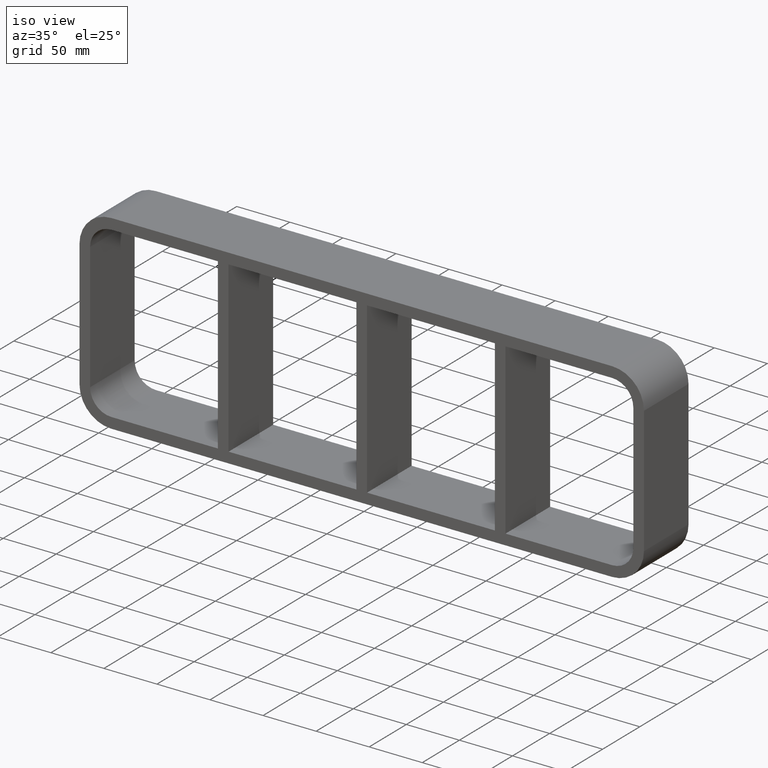
[diagram: clean part render]
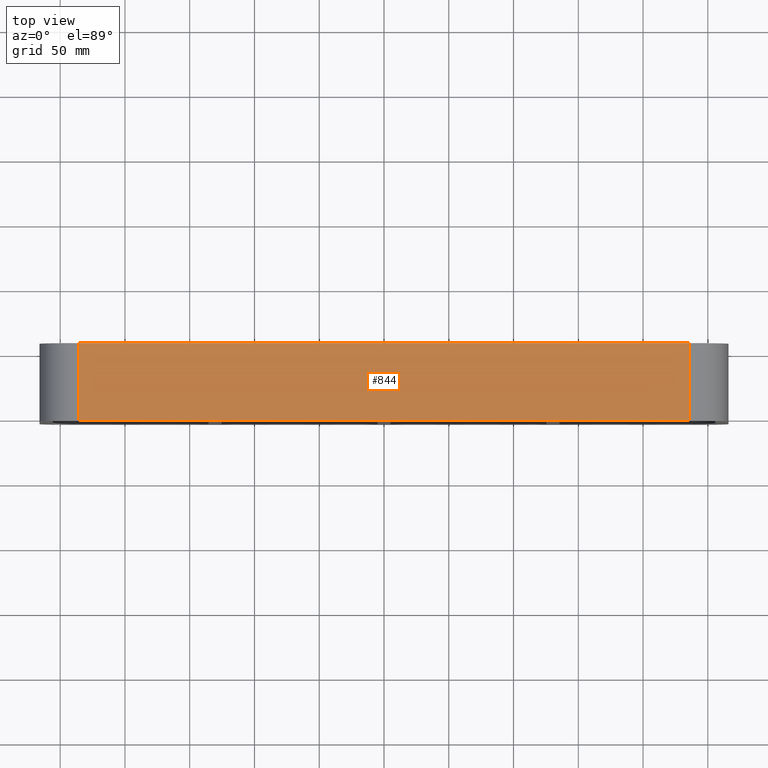
[diagram: tour spotlight — one face highlighted and labeled with its STEP entity id]
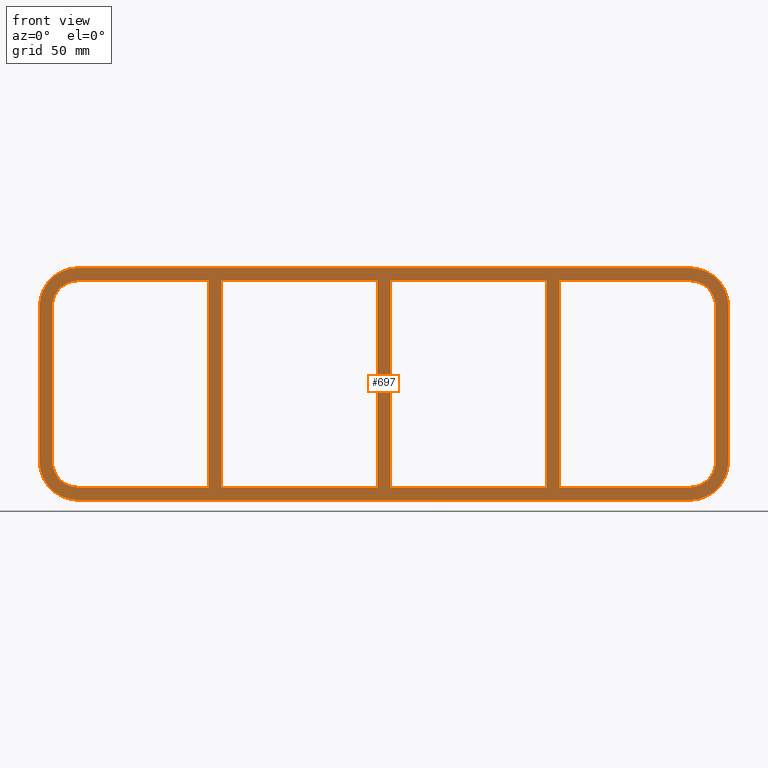
[diagram: tour spotlight — one face highlighted and labeled with its STEP entity id]
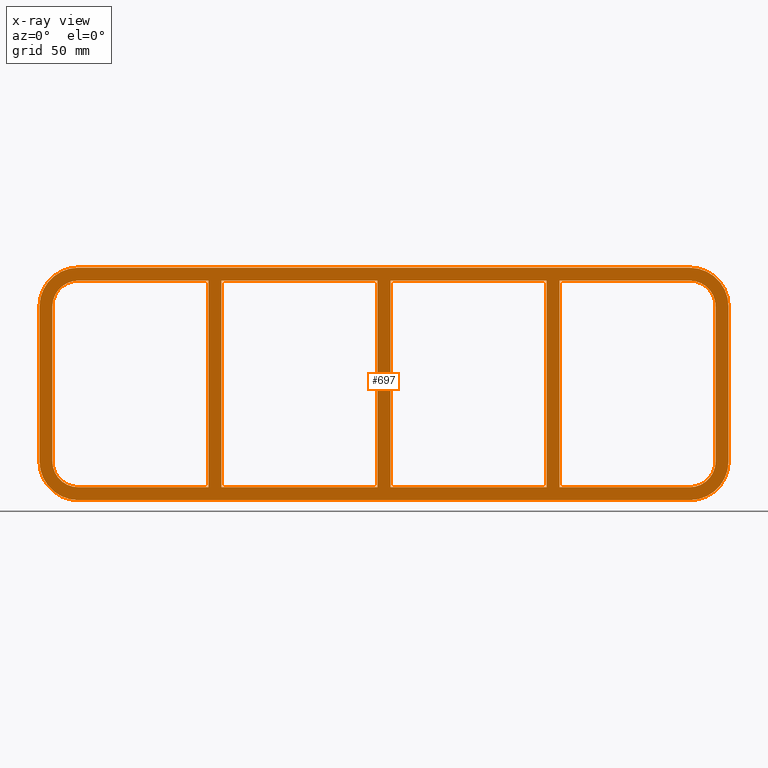
[diagram: x-ray of the same camera — body ghosted, this tour face saturated]
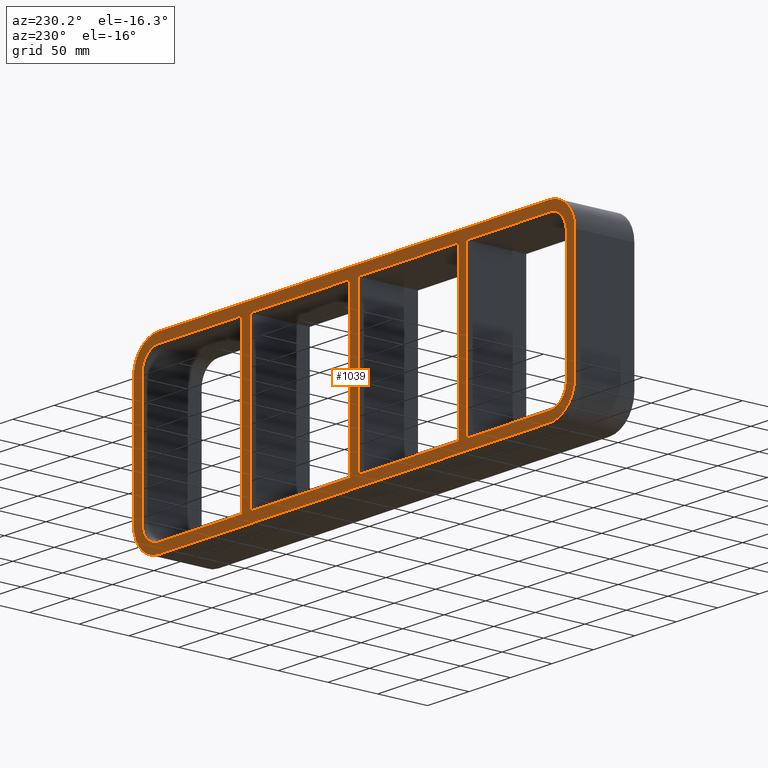
[diagram: tour spotlight — one face highlighted and labeled with its STEP entity id]
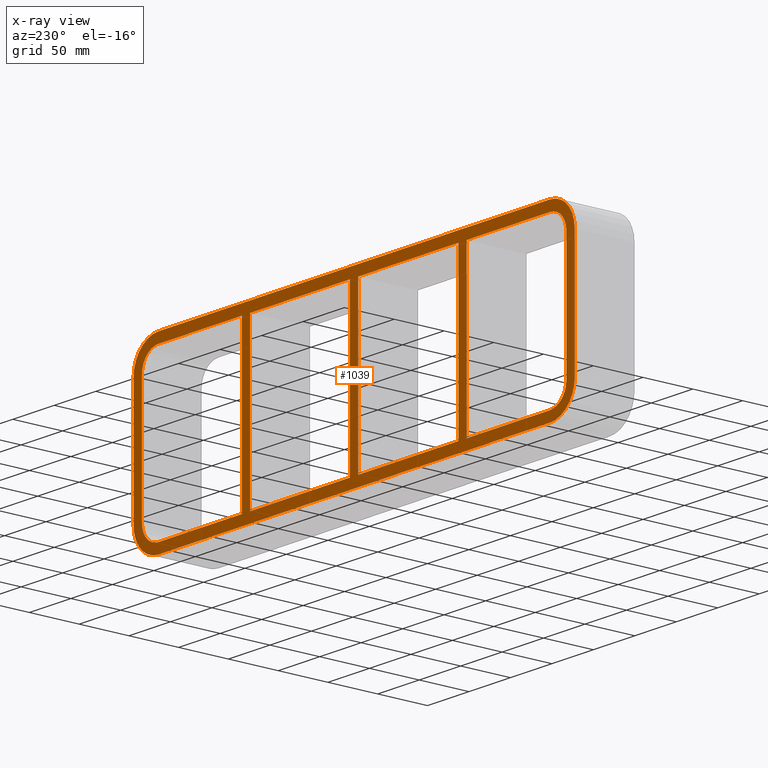
[diagram: x-ray of the same camera — body ghosted, this tour face saturated]
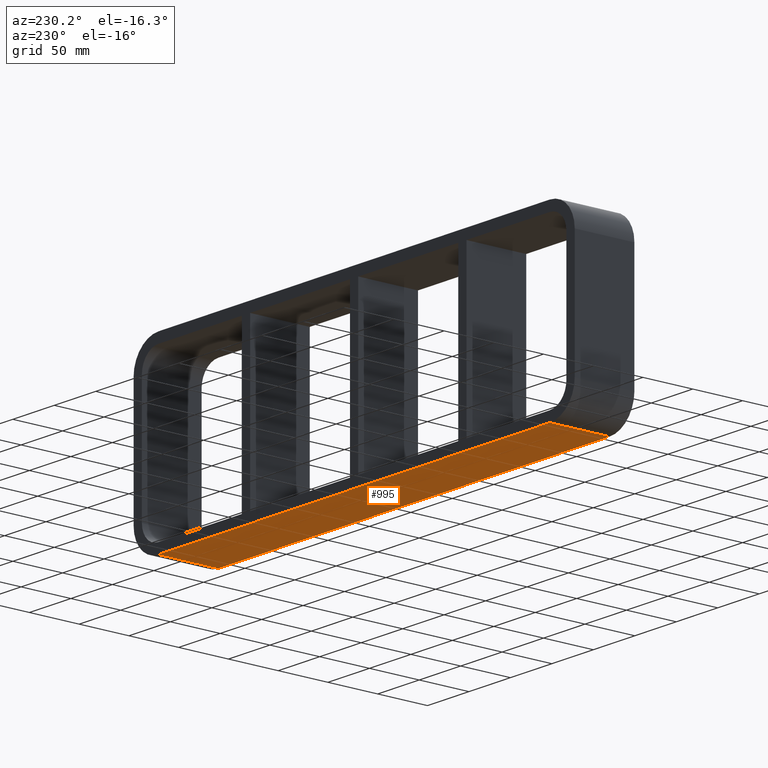
[diagram: tour spotlight — one face highlighted and labeled with its STEP entity id]
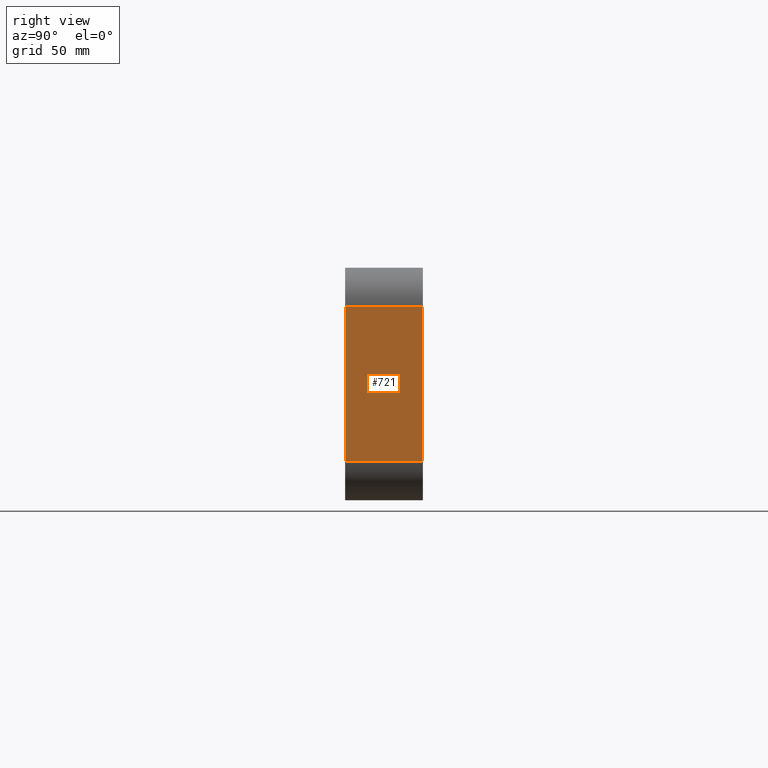
[diagram: tour spotlight — one face highlighted and labeled with its STEP entity id]
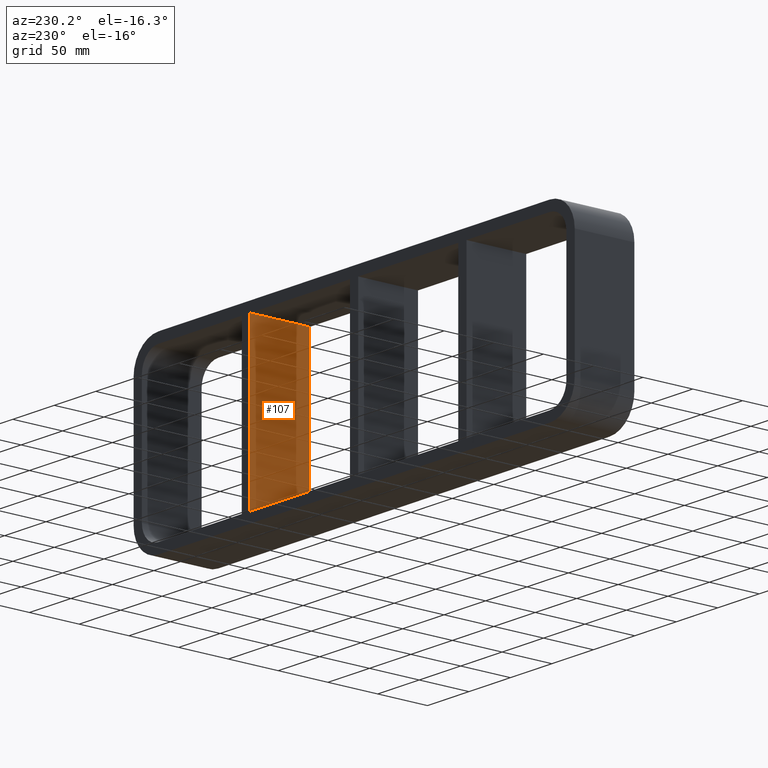
[diagram: tour spotlight — one face highlighted and labeled with its STEP entity id]
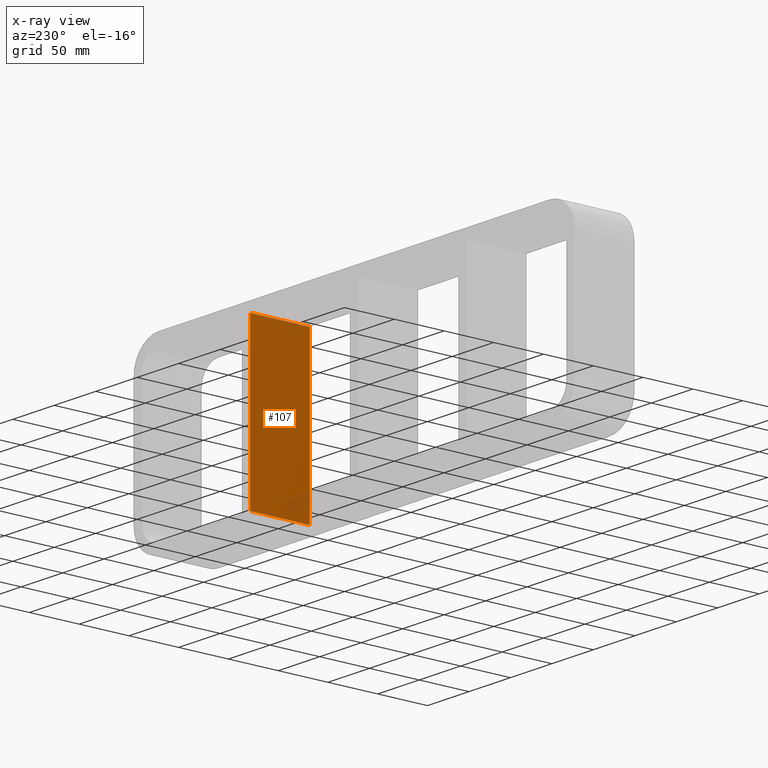
[diagram: x-ray of the same camera — body ghosted, this tour face saturated]
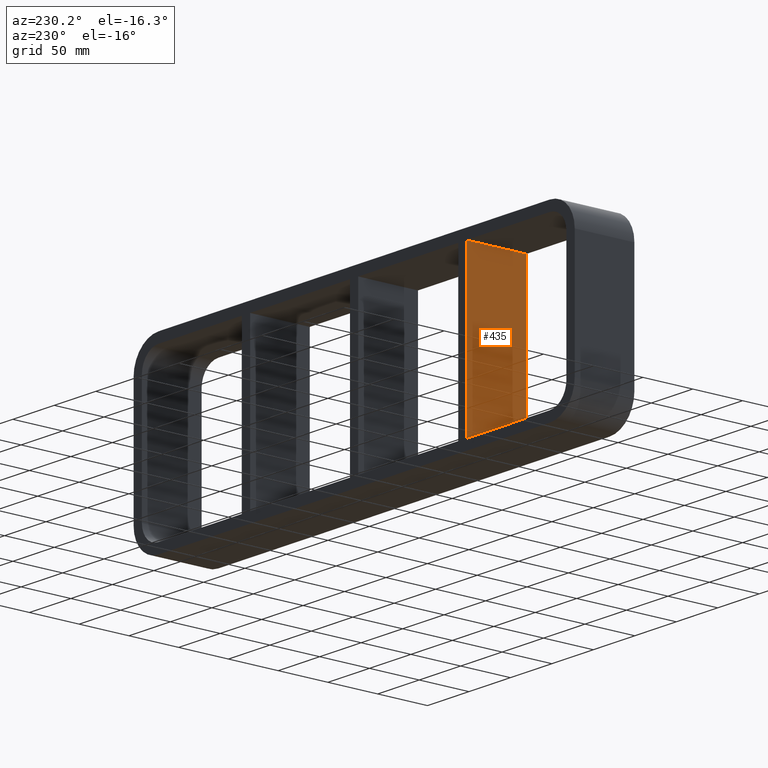
[diagram: tour spotlight — one face highlighted and labeled with its STEP entity id]
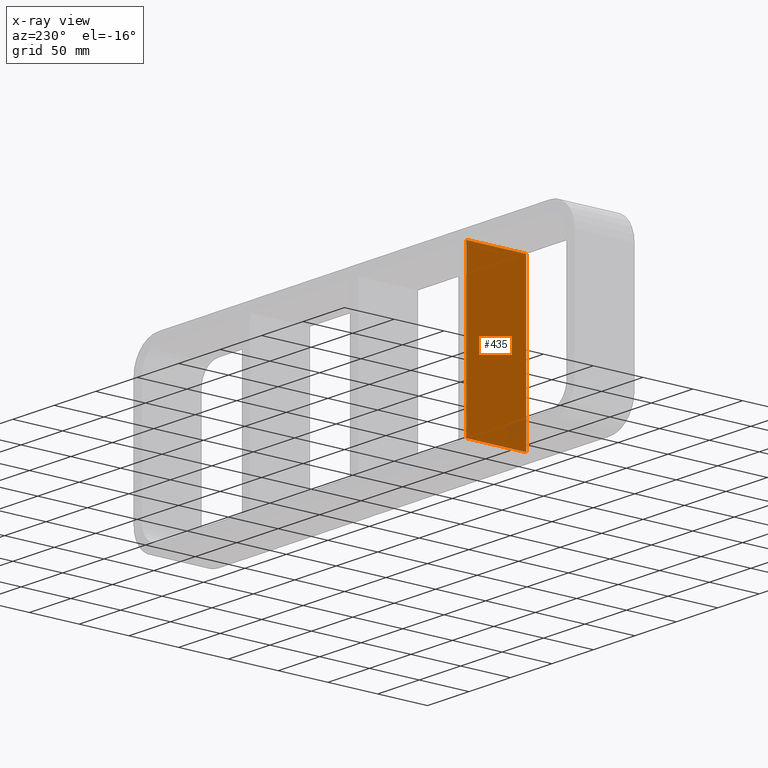
[diagram: x-ray of the same camera — body ghosted, this tour face saturated]
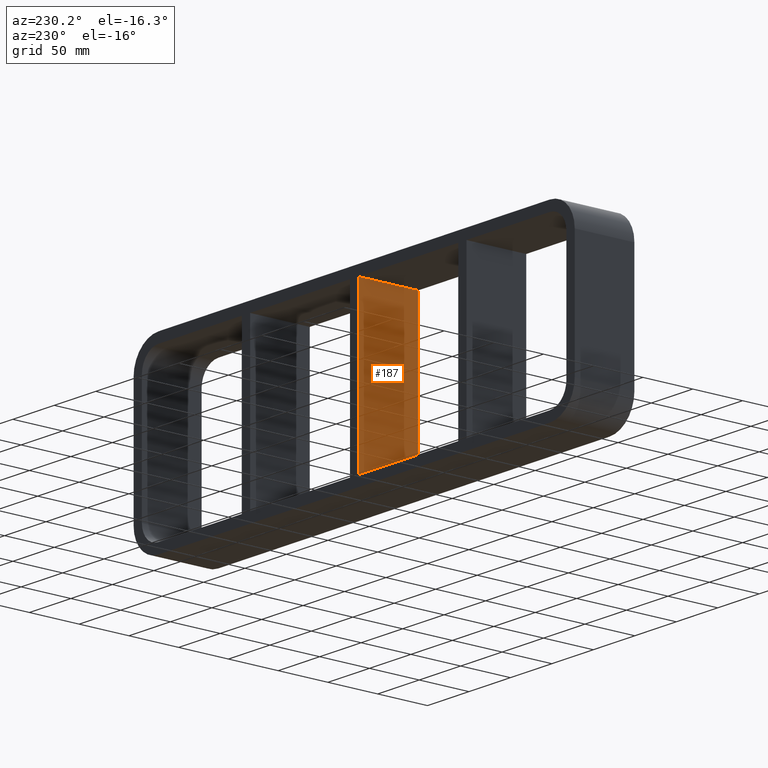
[diagram: tour spotlight — one face highlighted and labeled with its STEP entity id]
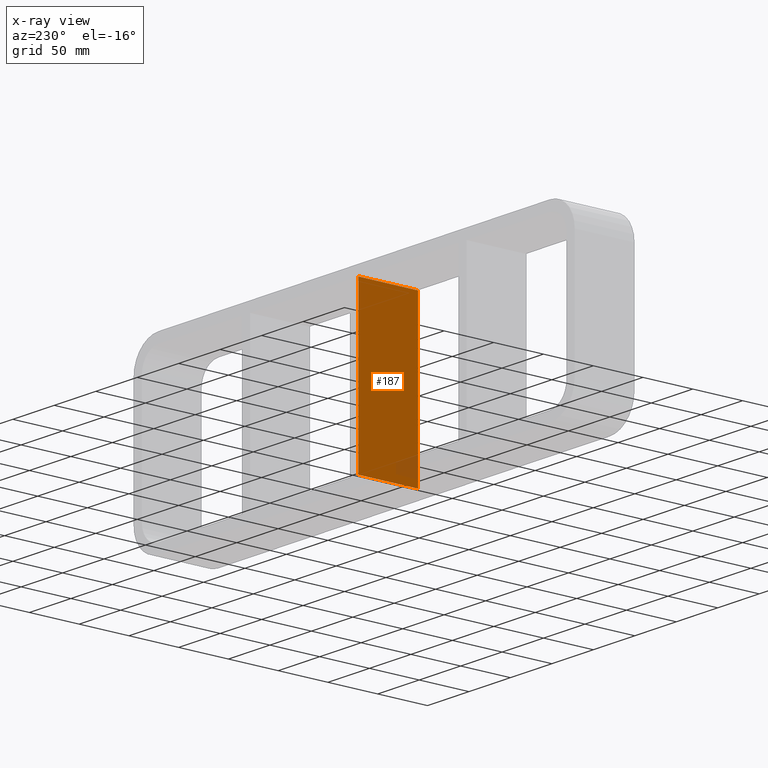
[diagram: x-ray of the same camera — body ghosted, this tour face saturated]
A machine part: a face-by-face anatomy tour. The part has 30 B-rep faces; the first image is the clean iso view, then the 8 largest visible faces are spotlighted one at a time (largest first), each with its STEP entity span.

Face 1 — top view, entity #844. In plain terms, the highlighted planar face has unit normal (0, 0, 1).
Definition (entity closure, byte-faithful):
#576=CARTESIAN_POINT('',(236.0,-3.0,89.750000000000014));
#577=VERTEX_POINT('',#576);
#585=CARTESIAN_POINT('',(-236.0,-3.0,89.750000000000014));
#586=VERTEX_POINT('',#585);
#587=CARTESIAN_POINT('',(236.0,-3.0,89.750000000000014));
#588=DIRECTION('',(-1.0,0.0,0.0));
#589=VECTOR('',#588,472.0);
#590=LINE('',#587,#589);
#591=EDGE_CURVE('',#577,#586,#590,.T.);
#729=CARTESIAN_POINT('',(236.0,57.0,89.750000000000014));
#730=VERTEX_POINT('',#729);
#738=CARTESIAN_POINT('',(236.0,57.0,89.750000000000014));
#739=DIRECTION('',(0.0,-1.0,0.0));
#740=VECTOR('',#739,60.0);
#741=LINE('',#738,#740);
#742=EDGE_CURVE('',#730,#577,#741,.T.);
#808=CARTESIAN_POINT('',(-236.0,57.0,89.750000000000014));
#809=VERTEX_POINT('',#808);
#819=CARTESIAN_POINT('',(-236.0,-3.0,89.750000000000014));
#820=DIRECTION('',(0.0,1.0,0.0));
#821=VECTOR('',#820,60.0);
#822=LINE('',#819,#821);
#823=EDGE_CURVE('',#586,#809,#822,.T.);
#828=CARTESIAN_POINT('',(-266.0,0.0,89.750000000000014));
#829=DIRECTION('',(0.0,0.0,1.0));
#830=DIRECTION('',(1.0,0.0,0.0));
#831=AXIS2_PLACEMENT_3D('',#828,#829,#830);
#832=PLANE('',#831);
#833=ORIENTED_EDGE('',*,*,#742,.F.);
#834=CARTESIAN_POINT('',(-236.0,57.0,89.750000000000014));
#835=DIRECTION('',(1.0,0.0,0.0));
#836=VECTOR('',#835,472.0);
#837=LINE('',#834,#836);
#838=EDGE_CURVE('',#809,#730,#837,.T.);
#839=ORIENTED_EDGE('',*,*,#838,.F.);
#840=ORIENTED_EDGE('',*,*,#823,.F.);
#841=ORIENTED_EDGE('',*,*,#591,.F.);
#842=EDGE_LOOP('',(#833,#839,#840,#841));
#843=FACE_OUTER_BOUND('',#842,.T.);
#844=ADVANCED_FACE('',(#843),#832,.T.);

Face 2 — front view, entity #697. An x-ray twin of the same camera follows (body ghosted, this face saturated) — the face is partly hidden behind the body. In plain terms, the highlighted planar face has unit normal (0, 1, 0).
Definition (entity closure, byte-faithful):
#73=CARTESIAN_POINT('',(125.49999999999866,-3.0,-79.750000000000014));
#74=VERTEX_POINT('',#73);
#75=CARTESIAN_POINT('',(125.49999999999869,-3.0,79.750000000000014));
#76=VERTEX_POINT('',#75);
#77=CARTESIAN_POINT('',(125.49999999999866,-3.0,-79.750000000000014));
#78=DIRECTION('',(0.0,0.0,1.0));
#79=VECTOR('',#78,159.50000000000003);
#80=LINE('',#77,#79);
#81=EDGE_CURVE('',#74,#76,#80,.T.);
#113=CARTESIAN_POINT('',(135.50000000000728,-3.0,79.750000000000014));
#114=VERTEX_POINT('',#113);
#115=CARTESIAN_POINT('',(135.50000000000728,-3.0,-79.74999999998424));
#116=VERTEX_POINT('',#115);
#117=CARTESIAN_POINT('',(135.50000000000728,-3.0,79.750000000000014));
#118=DIRECTION('',(0.0,0.0,-1.0));
#119=VECTOR('',#118,159.49999999998425);
#120=LINE('',#117,#119);
#121=EDGE_CURVE('',#114,#116,#120,.T.);
#153=CARTESIAN_POINT('',(-5.00000000000135,-3.0,-79.750000000000014));
#154=VERTEX_POINT('',#153);
#155=CARTESIAN_POINT('',(-5.000000000001315,-3.0,79.750000000000014));
#156=VERTEX_POINT('',#155);
#157=CARTESIAN_POINT('',(-5.00000000000135,-3.0,-79.750000000000014));
#158=DIRECTION('',(0.0,0.0,1.0));
#159=VECTOR('',#158,159.50000000000003);
#160=LINE('',#157,#159);
#161=EDGE_CURVE('',#154,#156,#160,.T.);
#193=CARTESIAN_POINT('',(5.000000000007283,-3.0,79.750000000000014));
#194=VERTEX_POINT('',#193);
#195=CARTESIAN_POINT('',(5.000000000007283,-3.0,-79.74999999998424));
#196=VERTEX_POINT('',#195);
#197=CARTESIAN_POINT('',(5.000000000007283,-3.0,79.750000000000014));
#198=DIRECTION('',(0.0,0.0,-1.0));
#199=VECTOR('',#198,159.49999999998425);
#200=LINE('',#197,#199);
#201=EDGE_CURVE('',#194,#196,#200,.T.);
#242=CARTESIAN_POINT('',(-125.49999999999272,-3.0,-79.74999999998424));
#243=VERTEX_POINT('',#242);
#250=CARTESIAN_POINT('',(-5.000000000001336,-3.0,-79.750000000000014));
#251=DIRECTION('',(-1.0,0.0,0.0));
#252=VECTOR('',#251,120.49999999999142);
#253=LINE('',#250,#252);
#254=EDGE_CURVE('',#154,#243,#253,.T.);
#272=CARTESIAN_POINT('',(125.49999999999866,-3.0,-79.750000000000014));
#273=DIRECTION('',(-1.0,0.0,0.0));
#274=VECTOR('',#273,120.49999999999137);
#275=LINE('',#272,#274);
#276=EDGE_CURVE('',#74,#196,#275,.T.);
#287=CARTESIAN_POINT('',(236.00000000000006,-3.0,-79.750000000000014));
#288=VERTEX_POINT('',#287);
#289=CARTESIAN_POINT('',(236.00000000000006,-3.0,-79.750000000000014));
#290=DIRECTION('',(-1.0,0.0,0.0));
#291=VECTOR('',#290,100.49999999999275);
#292=LINE('',#289,#291);
#293=EDGE_CURVE('',#288,#116,#292,.T.);
#318=CARTESIAN_POINT('',(-125.49999999999272,-3.0,79.750000000000014));
#319=VERTEX_POINT('',#318);
#320=CARTESIAN_POINT('',(-125.49999999999272,-3.0,79.750000000000014));
#321=DIRECTION('',(1.0,0.0,0.0));
#322=VECTOR('',#321,120.49999999999142);
#323=LINE('',#320,#322);
#324=EDGE_CURVE('',#319,#156,#323,.T.);
#357=CARTESIAN_POINT('',(236.00000000000006,-3.0,79.750000000000014));
#358=VERTEX_POINT('',#357);
#365=CARTESIAN_POINT('',(135.50000000000728,-3.0,79.750000000000014));
#366=DIRECTION('',(1.0,0.0,0.0));
#367=VECTOR('',#366,100.49999999999278);
#368=LINE('',#365,#367);
#369=EDGE_CURVE('',#114,#358,#368,.T.);
#380=CARTESIAN_POINT('',(5.000000000007276,-3.0,79.750000000000014));
#381=DIRECTION('',(1.0,0.0,0.0));
#382=VECTOR('',#381,120.49999999999142);
#383=LINE('',#380,#382);
#384=EDGE_CURVE('',#194,#76,#383,.T.);
#401=CARTESIAN_POINT('',(-135.50000000000136,-3.0,-79.750000000000014));
#402=VERTEX_POINT('',#401);
#403=CARTESIAN_POINT('',(-135.50000000000131,-3.0,79.750000000000014));
#404=VERTEX_POINT('',#403);
#405=CARTESIAN_POINT('',(-135.50000000000136,-3.0,-79.750000000000014));
#406=DIRECTION('',(0.0,0.0,1.0));
#407=VECTOR('',#406,159.50000000000003);
#408=LINE('',#405,#407);
#409=EDGE_CURVE('',#402,#404,#408,.T.);
#441=CARTESIAN_POINT('',(-125.49999999999272,-3.0,79.750000000000014));
#442=DIRECTION('',(0.0,0.0,-1.0));
#443=VECTOR('',#442,159.49999999998425);
#444=LINE('',#441,#443);
#445=EDGE_CURVE('',#319,#243,#444,.T.);
#472=CARTESIAN_POINT('',(-236.0,-3.0,-79.750000000000014));
#473=VERTEX_POINT('',#472);
#480=CARTESIAN_POINT('',(-135.50000000000134,-3.0,-79.750000000000014));
#481=DIRECTION('',(-1.0,0.0,0.0));
#482=VECTOR('',#481,100.49999999999869);
#483=LINE('',#480,#482);
#484=EDGE_CURVE('',#402,#473,#483,.T.);
#495=CARTESIAN_POINT('',(-236.0,-3.0,79.750000000000014));
#496=VERTEX_POINT('',#495);
#497=CARTESIAN_POINT('',(-236.0,-3.0,79.750000000000014));
#498=DIRECTION('',(1.0,0.0,0.0));
#499=VECTOR('',#498,100.49999999999869);
#500=LINE('',#497,#499);
#501=EDGE_CURVE('',#496,#404,#500,.T.);
#536=CARTESIAN_POINT('',(266.0,-3.0,-59.750000000000014));
#537=VERTEX_POINT('',#536);
#544=CARTESIAN_POINT('',(236.0,-3.0,-89.750000000000014));
#545=VERTEX_POINT('',#544);
#546=CARTESIAN_POINT('',(236.0,-3.0,-59.750000000000014));
#547=DIRECTION('',(0.0,1.0,0.0));
#548=DIRECTION('',(0.707106781186547,0.0,-0.707106781186547));
#549=AXIS2_PLACEMENT_3D('',#546,#547,#548);
#550=CIRCLE('',#549,30.0);
#551=EDGE_CURVE('',#537,#545,#550,.T.);
#562=CARTESIAN_POINT('',(0.0,-3.0,0.0));
#563=DIRECTION('',(0.0,1.0,0.0));
#564=DIRECTION('',(0.0,0.0,1.0));
#565=AXIS2_PLACEMENT_3D('',#562,#563,#564);
#566=PLANE('',#565);
#567=ORIENTED_EDGE('',*,*,#551,.F.);
#568=CARTESIAN_POINT('',(266.0,-3.0,59.750000000000014));
#569=VERTEX_POINT('',#568);
#570=CARTESIAN_POINT('',(266.0,-3.0,-59.750000000000014));
#571=DIRECTION('',(0.0,0.0,1.0));
#572=VECTOR('',#571,119.50000000000003);
#573=LINE('',#570,#572);
#574=EDGE_CURVE('',#537,#569,#573,.T.);
#575=ORIENTED_EDGE('',*,*,#574,.T.);
#576=CARTESIAN_POINT('',(236.0,-3.0,89.750000000000014));
#577=VERTEX_POINT('',#576);
#578=CARTESIAN_POINT('',(236.0,-3.0,59.750000000000014));
#579=DIRECTION('',(0.0,1.0,0.0));
#580=DIRECTION('',(0.707106781186547,0.0,0.707106781186547));
#581=AXIS2_PLACEMENT_3D('',#578,#579,#580);
#582=CIRCLE('',#581,30.0);
#583=EDGE_CURVE('',#577,#569,#582,.T.);
#584=ORIENTED_EDGE('',*,*,#583,.F.);
#585=CARTESIAN_POINT('',(-236.0,-3.0,89.750000000000014));
#586=VERTEX_POINT('',#585);
#587=CARTESIAN_POINT('',(236.0,-3.0,89.750000000000014));
#588=DIRECTION('',(-1.0,0.0,0.0));
#589=VECTOR('',#588,472.0);
#590=LINE('',#587,#589);
#591=EDGE_CURVE('',#577,#586,#590,.T.);
#592=ORIENTED_EDGE('',*,*,#591,.T.);
#593=CARTESIAN_POINT('',(-266.0,-3.0,59.750000000000014));
#594=VERTEX_POINT('',#593);
#595=CARTESIAN_POINT('',(-236.0,-3.0,59.750000000000014));
#596=DIRECTION('',(0.0,1.0,0.0));
#597=DIRECTION('',(-0.707106781186547,0.0,0.707106781186547));
#598=AXIS2_PLACEMENT_3D('',#595,#596,#597);
#599=CIRCLE('',#598,30.0);
#600=EDGE_CURVE('',#594,#586,#599,.T.);
#601=ORIENTED_EDGE('',*,*,#600,.F.);
#602=CARTESIAN_POINT('',(-266.0,-3.0,-59.750000000000014));
#603=VERTEX_POINT('',#602);
#604=CARTESIAN_POINT('',(-266.0,-3.0,59.750000000000014));
#605=DIRECTION('',(0.0,0.0,-1.0));
#606=VECTOR('',#605,119.50000000000003);
#607=LINE('',#604,#606);
#608=EDGE_CURVE('',#594,#603,#607,.T.);
#609=ORIENTED_EDGE('',*,*,#608,.T.);
#610=CARTESIAN_POINT('',(-236.0,-3.0,-89.750000000000014));
#611=VERTEX_POINT('',#610);
#612=CARTESIAN_POINT('',(-236.0,-3.0,-59.750000000000014));
#613=DIRECTION('',(0.0,1.0,0.0));
#614=DIRECTION('',(-0.707106781186547,0.0,-0.707106781186547));
#615=AXIS2_PLACEMENT_3D('',#612,#613,#614);
#616=CIRCLE('',#615,30.0);
#617=EDGE_CURVE('',#611,#603,#616,.T.);
#618=ORIENTED_EDGE('',*,*,#617,.F.);
#619=CARTESIAN_POINT('',(-236.0,-3.0,-89.750000000000014));
#620=DIRECTION('',(1.0,0.0,0.0));
#621=VECTOR('',#620,472.0);
#622=LINE('',#619,#621);
#623=EDGE_CURVE('',#611,#545,#622,.T.);
#624=ORIENTED_EDGE('',*,*,#623,.T.);
#625=EDGE_LOOP('',(#567,#575,#584,#592,#601,#609,#618,#624));
#626=FACE_OUTER_BOUND('',#625,.T.);
#627=ORIENTED_EDGE('',*,*,#276,.T.);
#628=ORIENTED_EDGE('',*,*,#201,.F.);
#629=ORIENTED_EDGE('',*,*,#384,.T.);
#630=ORIENTED_EDGE('',*,*,#81,.F.);
#631=EDGE_LOOP('',(#627,#628,#629,#630));
#632=FACE_BOUND('',#631,.T.);
#633=ORIENTED_EDGE('',*,*,#254,.T.);
#634=ORIENTED_EDGE('',*,*,#445,.F.);
#635=ORIENTED_EDGE('',*,*,#324,.T.);
#636=ORIENTED_EDGE('',*,*,#161,.F.);
#637=EDGE_LOOP('',(#633,#634,#635,#636));
#638=FACE_BOUND('',#637,.T.);
#639=ORIENTED_EDGE('',*,*,#484,.T.);
#640=CARTESIAN_POINT('',(-256.0,-3.0,-59.750000000000014));
#641=VERTEX_POINT('',#640);
#642=CARTESIAN_POINT('',(-236.0,-3.0,-59.750000000000014));
#643=DIRECTION('',(0.0,-1.0,0.0));
#644=DIRECTION('',(-0.707106781186547,0.0,-0.707106781186547));
#645=AXIS2_PLACEMENT_3D('',#642,#643,#644);
#646=CIRCLE('',#645,19.999999999999996);
#647=EDGE_CURVE('',#641,#473,#646,.T.);
#648=ORIENTED_EDGE('',*,*,#647,.F.);
#649=CARTESIAN_POINT('',(-256.0,-3.0,59.750000000000014));
#650=VERTEX_POINT('',#649);
#651=CARTESIAN_POINT('',(-256.0,-3.0,-59.750000000000014));
#652=DIRECTION('',(0.0,0.0,1.0));
#653=VECTOR('',#652,119.50000000000003);
#654=LINE('',#651,#653);
#655=EDGE_CURVE('',#641,#650,#654,.T.);
#656=ORIENTED_EDGE('',*,*,#655,.T.);
#657=CARTESIAN_POINT('',(-236.0,-3.0,59.750000000000014));
#658=DIRECTION('',(0.0,-1.0,0.0));
#659=DIRECTION('',(-0.707106781186547,0.0,0.707106781186547));
#660=AXIS2_PLACEMENT_3D('',#657,#658,#659);
#661=CIRCLE('',#660,19.999999999999996);
#662=EDGE_CURVE('',#496,#650,#661,.T.);
#663=ORIENTED_EDGE('',*,*,#662,.F.);
#664=ORIENTED_EDGE('',*,*,#501,.T.);
#665=ORIENTED_EDGE('',*,*,#409,.F.);
#666=EDGE_LOOP('',(#639,#648,#656,#663,#664,#665));
#667=FACE_BOUND('',#666,.T.);
#668=ORIENTED_EDGE('',*,*,#121,.F.);
#669=ORIENTED_EDGE('',*,*,#369,.T.);
#670=CARTESIAN_POINT('',(256.00000000000006,-3.0,59.750000000000014));
#671=VERTEX_POINT('',#670);
#672=CARTESIAN_POINT('',(236.0,-3.0,59.750000000000014));
#673=DIRECTION('',(0.0,-1.0,0.0));
#674=DIRECTION('',(0.707106781186547,0.0,0.707106781186547));
#675=AXIS2_PLACEMENT_3D('',#672,#673,#674);
#676=CIRCLE('',#675,19.999999999999996);
#677=EDGE_CURVE('',#671,#358,#676,.T.);
#678=ORIENTED_EDGE('',*,*,#677,.F.);
#679=CARTESIAN_POINT('',(256.00000000000006,-3.0,-59.750000000000014));
#680=VERTEX_POINT('',#679);
#681=CARTESIAN_POINT('',(256.00000000000006,-3.0,59.750000000000014));
#682=DIRECTION('',(0.0,0.0,-1.0));
#683=VECTOR('',#682,119.50000000000003);
#684=LINE('',#681,#683);
#685=EDGE_CURVE('',#671,#680,#684,.T.);
#686=ORIENTED_EDGE('',*,*,#685,.T.);
#687=CARTESIAN_POINT('',(236.00000000000006,-3.0,-59.750000000000014));
#688=DIRECTION('',(0.0,-1.0,0.0));
#689=DIRECTION('',(0.707106781186547,0.0,-0.707106781186547));
#690=AXIS2_PLACEMENT_3D('',#687,#688,#689);
#691=CIRCLE('',#690,19.999999999999996);
#692=EDGE_CURVE('',#288,#680,#691,.T.);
#693=ORIENTED_EDGE('',*,*,#692,.F.);
#694=ORIENTED_EDGE('',*,*,#293,.T.);
#695=EDGE_LOOP('',(#668,#669,#678,#686,#693,#694));
#696=FACE_BOUND('',#695,.T.);
#697=ADVANCED_FACE('',(#626,#632,#638,#667,#696),#566,.F.);

Face 3 — auxiliary view, entity #1039. An x-ray twin of the same camera follows (body ghosted, this face saturated) — the face is partly hidden behind the body. In plain terms, the highlighted planar face has unit normal (0, 1, 0).
Definition (entity closure, byte-faithful):
#83=CARTESIAN_POINT('',(125.49999999999869,57.0,79.750000000000014));
#84=VERTEX_POINT('',#83);
#91=CARTESIAN_POINT('',(125.49999999999866,57.0,-79.750000000000014));
#92=VERTEX_POINT('',#91);
#93=CARTESIAN_POINT('',(125.49999999999866,57.0,-79.750000000000014));
#94=DIRECTION('',(0.0,0.0,1.0));
#95=VECTOR('',#94,159.50000000000003);
#96=LINE('',#93,#95);
#97=EDGE_CURVE('',#92,#84,#96,.T.);
#123=CARTESIAN_POINT('',(135.50000000000728,57.0,-79.74999999998424));
#124=VERTEX_POINT('',#123);
#131=CARTESIAN_POINT('',(135.50000000000728,57.0,79.750000000000014));
#132=VERTEX_POINT('',#131);
#133=CARTESIAN_POINT('',(135.50000000000728,57.0,79.750000000000014));
#134=DIRECTION('',(0.0,0.0,-1.0));
#135=VECTOR('',#134,159.49999999998425);
#136=LINE('',#133,#135);
#137=EDGE_CURVE('',#132,#124,#136,.T.);
#163=CARTESIAN_POINT('',(-5.000000000001315,57.0,79.750000000000014));
#164=VERTEX_POINT('',#163);
#171=CARTESIAN_POINT('',(-5.00000000000135,57.0,-79.750000000000014));
#172=VERTEX_POINT('',#171);
#173=CARTESIAN_POINT('',(-5.00000000000135,57.0,-79.750000000000014));
#174=DIRECTION('',(0.0,0.0,1.0));
#175=VECTOR('',#174,159.50000000000003);
#176=LINE('',#173,#175);
#177=EDGE_CURVE('',#172,#164,#176,.T.);
#203=CARTESIAN_POINT('',(5.000000000007283,57.0,-79.74999999998424));
#204=VERTEX_POINT('',#203);
#211=CARTESIAN_POINT('',(5.000000000007283,57.0,79.750000000000014));
#212=VERTEX_POINT('',#211);
#213=CARTESIAN_POINT('',(5.000000000007283,57.0,79.750000000000014));
#214=DIRECTION('',(0.0,0.0,-1.0));
#215=VECTOR('',#214,159.49999999998425);
#216=LINE('',#213,#215);
#217=EDGE_CURVE('',#212,#204,#216,.T.);
#234=CARTESIAN_POINT('',(-125.49999999999272,57.0,-79.74999999998424));
#235=VERTEX_POINT('',#234);
#236=CARTESIAN_POINT('',(-125.49999999999275,57.0,-79.750000000000014));
#237=DIRECTION('',(1.0,0.0,0.0));
#238=VECTOR('',#237,120.49999999999142);
#239=LINE('',#236,#238);
#240=EDGE_CURVE('',#235,#172,#239,.T.);
#265=CARTESIAN_POINT('',(5.00000000000729,57.0,-79.750000000000014));
#266=DIRECTION('',(1.0,0.0,0.0));
#267=VECTOR('',#266,120.49999999999137);
#268=LINE('',#265,#267);
#269=EDGE_CURVE('',#204,#92,#268,.T.);
#295=CARTESIAN_POINT('',(236.00000000000006,57.0,-79.750000000000014));
#296=VERTEX_POINT('',#295);
#303=CARTESIAN_POINT('',(135.5000000000073,57.0,-79.750000000000014));
#304=DIRECTION('',(1.0,0.0,0.0));
#305=VECTOR('',#304,100.49999999999275);
#306=LINE('',#303,#305);
#307=EDGE_CURVE('',#124,#296,#306,.T.);
#326=CARTESIAN_POINT('',(-125.49999999999272,57.0,79.750000000000014));
#327=VERTEX_POINT('',#326);
#334=CARTESIAN_POINT('',(-5.000000000001307,57.0,79.750000000000014));
#335=DIRECTION('',(-1.0,0.0,0.0));
#336=VECTOR('',#335,120.49999999999142);
#337=LINE('',#334,#336);
#338=EDGE_CURVE('',#164,#327,#337,.T.);
#349=CARTESIAN_POINT('',(236.00000000000006,57.0,79.750000000000014));
#350=VERTEX_POINT('',#349);
#351=CARTESIAN_POINT('',(236.00000000000006,57.0,79.750000000000014));
#352=DIRECTION('',(-1.0,0.0,0.0));
#353=VECTOR('',#352,100.49999999999278);
#354=LINE('',#351,#353);
#355=EDGE_CURVE('',#350,#132,#354,.T.);
#387=CARTESIAN_POINT('',(125.49999999999869,57.0,79.750000000000014));
#388=DIRECTION('',(-1.0,0.0,0.0));
#389=VECTOR('',#388,120.49999999999142);
#390=LINE('',#387,#389);
#391=EDGE_CURVE('',#84,#212,#390,.T.);
#411=CARTESIAN_POINT('',(-135.50000000000131,57.0,79.750000000000014));
#412=VERTEX_POINT('',#411);
#419=CARTESIAN_POINT('',(-135.50000000000136,57.0,-79.750000000000014));
#420=VERTEX_POINT('',#419);
#421=CARTESIAN_POINT('',(-135.50000000000136,57.0,-79.750000000000014));
#422=DIRECTION('',(0.0,0.0,1.0));
#423=VECTOR('',#422,159.50000000000003);
#424=LINE('',#421,#423);
#425=EDGE_CURVE('',#420,#412,#424,.T.);
#448=CARTESIAN_POINT('',(-125.49999999999272,57.0,79.750000000000014));
#449=DIRECTION('',(0.0,0.0,-1.0));
#450=VECTOR('',#449,159.49999999998425);
#451=LINE('',#448,#450);
#452=EDGE_CURVE('',#327,#235,#451,.T.);
#464=CARTESIAN_POINT('',(-236.0,57.0,-79.750000000000014));
#465=VERTEX_POINT('',#464);
#466=CARTESIAN_POINT('',(-236.00000000000003,57.0,-79.750000000000014));
#467=DIRECTION('',(1.0,0.0,0.0));
#468=VECTOR('',#467,100.49999999999869);
#469=LINE('',#466,#468);
#470=EDGE_CURVE('',#465,#420,#469,.T.);
#503=CARTESIAN_POINT('',(-236.0,57.0,79.750000000000014));
#504=VERTEX_POINT('',#503);
#511=CARTESIAN_POINT('',(-135.50000000000131,57.0,79.750000000000014));
#512=DIRECTION('',(-1.0,0.0,0.0));
#513=VECTOR('',#512,100.49999999999869);
#514=LINE('',#511,#513);
#515=EDGE_CURVE('',#412,#504,#514,.T.);
#525=CARTESIAN_POINT('',(236.0,57.0,-89.750000000000014));
#526=VERTEX_POINT('',#525);
#527=CARTESIAN_POINT('',(266.0,57.0,-59.750000000000014));
#528=VERTEX_POINT('',#527);
#529=CARTESIAN_POINT('',(236.0,57.0,-59.750000000000014));
#530=DIRECTION('',(0.0,-1.0,0.0));
#531=DIRECTION('',(0.707106781186547,0.0,-0.707106781186547));
#532=AXIS2_PLACEMENT_3D('',#529,#530,#531);
#533=CIRCLE('',#532,30.0);
#534=EDGE_CURVE('',#526,#528,#533,.T.);
#704=CARTESIAN_POINT('',(266.0,57.0,59.750000000000014));
#705=VERTEX_POINT('',#704);
#706=CARTESIAN_POINT('',(266.0,57.0,59.750000000000014));
#707=DIRECTION('',(0.0,0.0,-1.0));
#708=VECTOR('',#707,119.50000000000003);
#709=LINE('',#706,#708);
#710=EDGE_CURVE('',#705,#528,#709,.T.);
#729=CARTESIAN_POINT('',(236.0,57.0,89.750000000000014));
#730=VERTEX_POINT('',#729);
#731=CARTESIAN_POINT('',(236.0,57.0,59.750000000000014));
#732=DIRECTION('',(0.0,-1.0,0.0));
#733=DIRECTION('',(0.707106781186547,0.0,0.707106781186547));
#734=AXIS2_PLACEMENT_3D('',#731,#732,#733);
#735=CIRCLE('',#734,30.0);
#736=EDGE_CURVE('',#705,#730,#735,.T.);
#752=CARTESIAN_POINT('',(-266.0,57.0,-59.750000000000014));
#753=VERTEX_POINT('',#752);
#754=CARTESIAN_POINT('',(-236.0,57.0,-89.750000000000014));
#755=VERTEX_POINT('',#754);
#756=CARTESIAN_POINT('',(-236.0,57.0,-59.750000000000014));
#757=DIRECTION('',(0.0,-1.0,0.0));
#758=DIRECTION('',(-0.707106781186547,0.0,-0.707106781186547));
#759=AXIS2_PLACEMENT_3D('',#756,#757,#758);
#760=CIRCLE('',#759,30.0);
#761=EDGE_CURVE('',#753,#755,#760,.T.);
#786=CARTESIAN_POINT('',(-266.0,57.0,59.750000000000014));
#787=VERTEX_POINT('',#786);
#794=CARTESIAN_POINT('',(-266.0,57.0,-59.750000000000014));
#795=DIRECTION('',(0.0,0.0,1.0));
#796=VECTOR('',#795,119.50000000000003);
#797=LINE('',#794,#796);
#798=EDGE_CURVE('',#753,#787,#797,.T.);
#808=CARTESIAN_POINT('',(-236.0,57.0,89.750000000000014));
#809=VERTEX_POINT('',#808);
#810=CARTESIAN_POINT('',(-236.0,57.0,59.750000000000014));
#811=DIRECTION('',(0.0,-1.0,0.0));
#812=DIRECTION('',(-0.707106781186547,0.0,0.707106781186547));
#813=AXIS2_PLACEMENT_3D('',#810,#811,#812);
#814=CIRCLE('',#813,30.0);
#815=EDGE_CURVE('',#809,#787,#814,.T.);
#834=CARTESIAN_POINT('',(-236.0,57.0,89.750000000000014));
#835=DIRECTION('',(1.0,0.0,0.0));
#836=VECTOR('',#835,472.0);
#837=LINE('',#834,#836);
#838=EDGE_CURVE('',#809,#730,#837,.T.);
#851=CARTESIAN_POINT('',(-256.0,57.0,59.750000000000014));
#852=VERTEX_POINT('',#851);
#859=CARTESIAN_POINT('',(-236.0,57.0,59.750000000000014));
#860=DIRECTION('',(0.0,1.0,0.0));
#861=DIRECTION('',(-0.707106781186547,0.0,0.707106781186547));
#862=AXIS2_PLACEMENT_3D('',#859,#860,#861);
#863=CIRCLE('',#862,19.999999999999996);
#864=EDGE_CURVE('',#852,#504,#863,.T.);
#877=CARTESIAN_POINT('',(-256.0,57.0,-59.750000000000014));
#878=VERTEX_POINT('',#877);
#885=CARTESIAN_POINT('',(-256.0,57.0,59.750000000000021));
#886=DIRECTION('',(0.0,0.0,-1.0));
#887=VECTOR('',#886,119.50000000000003);
#888=LINE('',#885,#887);
#889=EDGE_CURVE('',#852,#878,#888,.T.);
#901=CARTESIAN_POINT('',(256.00000000000006,57.0,59.750000000000014));
#902=VERTEX_POINT('',#901);
#903=CARTESIAN_POINT('',(236.0,57.0,59.750000000000014));
#904=DIRECTION('',(0.0,1.0,0.0));
#905=DIRECTION('',(0.707106781186547,0.0,0.707106781186547));
#906=AXIS2_PLACEMENT_3D('',#903,#904,#905);
#907=CIRCLE('',#906,19.999999999999996);
#908=EDGE_CURVE('',#350,#902,#907,.T.);
#926=CARTESIAN_POINT('',(-236.0,57.0,-59.750000000000014));
#927=DIRECTION('',(0.0,1.0,0.0));
#928=DIRECTION('',(-0.707106781186547,0.0,-0.707106781186547));
#929=AXIS2_PLACEMENT_3D('',#926,#927,#928);
#930=CIRCLE('',#929,19.999999999999996);
#931=EDGE_CURVE('',#465,#878,#930,.T.);
#942=CARTESIAN_POINT('',(256.00000000000006,57.0,-59.750000000000014));
#943=VERTEX_POINT('',#942);
#944=CARTESIAN_POINT('',(236.00000000000006,57.0,-59.750000000000014));
#945=DIRECTION('',(0.0,1.0,0.0));
#946=DIRECTION('',(0.707106781186547,0.0,-0.707106781186547));
#947=AXIS2_PLACEMENT_3D('',#944,#945,#946);
#948=CIRCLE('',#947,19.999999999999996);
#949=EDGE_CURVE('',#943,#296,#948,.T.);
#968=CARTESIAN_POINT('',(256.00000000000006,57.0,-59.750000000000021));
#969=DIRECTION('',(0.0,0.0,1.0));
#970=VECTOR('',#969,119.50000000000003);
#971=LINE('',#968,#970);
#972=EDGE_CURVE('',#943,#902,#971,.T.);
#987=CARTESIAN_POINT('',(236.0,57.0,-89.750000000000014));
#988=DIRECTION('',(-1.0,0.0,0.0));
#989=VECTOR('',#988,472.0);
#990=LINE('',#987,#989);
#991=EDGE_CURVE('',#526,#755,#990,.T.);
#996=CARTESIAN_POINT('',(0.0,57.0,0.0));
#997=DIRECTION('',(0.0,1.0,0.0));
#998=DIRECTION('',(0.0,0.0,1.0));
#999=AXIS2_PLACEMENT_3D('',#996,#997,#998);
#1000=PLANE('',#999);
#1001=ORIENTED_EDGE('',*,*,#534,.F.);
#1002=ORIENTED_EDGE('',*,*,#991,.T.);
#1003=ORIENTED_EDGE('',*,*,#761,.F.);
#1004=ORIENTED_EDGE('',*,*,#798,.T.);
#1005=ORIENTED_EDGE('',*,*,#815,.F.);
#1006=ORIENTED_EDGE('',*,*,#838,.T.);
#1007=ORIENTED_EDGE('',*,*,#736,.F.);
#1008=ORIENTED_EDGE('',*,*,#710,.T.);
#1009=EDGE_LOOP('',(#1001,#1002,#1003,#1004,#1005,#1006,#1007,#1008));
#1010=FACE_OUTER_BOUND('',#1009,.T.);
#1011=ORIENTED_EDGE('',*,*,#307,.T.);
#1012=ORIENTED_EDGE('',*,*,#949,.F.);
#1013=ORIENTED_EDGE('',*,*,#972,.T.);
#1014=ORIENTED_EDGE('',*,*,#908,.F.);
#1015=ORIENTED_EDGE('',*,*,#355,.T.);
#1016=ORIENTED_EDGE('',*,*,#137,.T.);
#1017=EDGE_LOOP('',(#1011,#1012,#1013,#1014,#1015,#1016));
#1018=FACE_BOUND('',#1017,.T.);
#1019=ORIENTED_EDGE('',*,*,#97,.T.);
#1020=ORIENTED_EDGE('',*,*,#391,.T.);
#1021=ORIENTED_EDGE('',*,*,#217,.T.);
#1022=ORIENTED_EDGE('',*,*,#269,.T.);
#1023=EDGE_LOOP('',(#1019,#1020,#1021,#1022));
#1024=FACE_BOUND('',#1023,.T.);
#1025=ORIENTED_EDGE('',*,*,#177,.T.);
#1026=ORIENTED_EDGE('',*,*,#338,.T.);
#1027=ORIENTED_EDGE('',*,*,#452,.T.);
#1028=ORIENTED_EDGE('',*,*,#240,.T.);
#1029=EDGE_LOOP('',(#1025,#1026,#1027,#1028));
#1030=FACE_BOUND('',#1029,.T.);
#1031=ORIENTED_EDGE('',*,*,#425,.T.);
#1032=ORIENTED_EDGE('',*,*,#515,.T.);
#1033=ORIENTED_EDGE('',*,*,#864,.F.);
#1034=ORIENTED_EDGE('',*,*,#889,.T.);
#1035=ORIENTED_EDGE('',*,*,#931,.F.);
#1036=ORIENTED_EDGE('',*,*,#470,.T.);
#1037=EDGE_LOOP('',(#1031,#1032,#1033,#1034,#1035,#1036));
#1038=FACE_BOUND('',#1037,.T.);
#1039=ADVANCED_FACE('',(#1010,#1018,#1024,#1030,#1038),#1000,.T.);

Face 4 — auxiliary view, entity #995. In plain terms, the highlighted planar face has unit normal (0, 0, -1).
Definition (entity closure, byte-faithful):
#525=CARTESIAN_POINT('',(236.0,57.0,-89.750000000000014));
#526=VERTEX_POINT('',#525);
#544=CARTESIAN_POINT('',(236.0,-3.0,-89.750000000000014));
#545=VERTEX_POINT('',#544);
#553=CARTESIAN_POINT('',(236.0,-3.0,-89.750000000000014));
#554=DIRECTION('',(0.0,1.0,0.0));
#555=VECTOR('',#554,60.0);
#556=LINE('',#553,#555);
#557=EDGE_CURVE('',#545,#526,#556,.T.);
#610=CARTESIAN_POINT('',(-236.0,-3.0,-89.750000000000014));
#611=VERTEX_POINT('',#610);
#619=CARTESIAN_POINT('',(-236.0,-3.0,-89.750000000000014));
#620=DIRECTION('',(1.0,0.0,0.0));
#621=VECTOR('',#620,472.0);
#622=LINE('',#619,#621);
#623=EDGE_CURVE('',#611,#545,#622,.T.);
#754=CARTESIAN_POINT('',(-236.0,57.0,-89.750000000000014));
#755=VERTEX_POINT('',#754);
#763=CARTESIAN_POINT('',(-236.0,57.0,-89.750000000000014));
#764=DIRECTION('',(0.0,-1.0,0.0));
#765=VECTOR('',#764,60.0);
#766=LINE('',#763,#765);
#767=EDGE_CURVE('',#755,#611,#766,.T.);
#979=CARTESIAN_POINT('',(266.0,0.0,-89.750000000000014));
#980=DIRECTION('',(0.0,0.0,-1.0));
#981=DIRECTION('',(-1.0,0.0,0.0));
#982=AXIS2_PLACEMENT_3D('',#979,#980,#981);
#983=PLANE('',#982);
#984=ORIENTED_EDGE('',*,*,#557,.F.);
#985=ORIENTED_EDGE('',*,*,#623,.F.);
#986=ORIENTED_EDGE('',*,*,#767,.F.);
#987=CARTESIAN_POINT('',(236.0,57.0,-89.750000000000014));
#988=DIRECTION('',(-1.0,0.0,0.0));
#989=VECTOR('',#988,472.0);
#990=LINE('',#987,#989);
#991=EDGE_CURVE('',#526,#755,#990,.T.);
#992=ORIENTED_EDGE('',*,*,#991,.F.);
#993=EDGE_LOOP('',(#984,#985,#986,#992));
#994=FACE_OUTER_BOUND('',#993,.T.);
#995=ADVANCED_FACE('',(#994),#983,.T.);

Face 5 — right view, entity #721. In plain terms, the highlighted planar face has unit normal (1, 0, 0).
Definition (entity closure, byte-faithful):
#527=CARTESIAN_POINT('',(266.0,57.0,-59.750000000000014));
#528=VERTEX_POINT('',#527);
#536=CARTESIAN_POINT('',(266.0,-3.0,-59.750000000000014));
#537=VERTEX_POINT('',#536);
#538=CARTESIAN_POINT('',(266.0,57.0,-59.750000000000014));
#539=DIRECTION('',(0.0,-1.0,0.0));
#540=VECTOR('',#539,60.0);
#541=LINE('',#538,#540);
#542=EDGE_CURVE('',#528,#537,#541,.T.);
#568=CARTESIAN_POINT('',(266.0,-3.0,59.750000000000014));
#569=VERTEX_POINT('',#568);
#570=CARTESIAN_POINT('',(266.0,-3.0,-59.750000000000014));
#571=DIRECTION('',(0.0,0.0,1.0));
#572=VECTOR('',#571,119.50000000000003);
#573=LINE('',#570,#572);
#574=EDGE_CURVE('',#537,#569,#573,.T.);
#698=CARTESIAN_POINT('',(266.0,0.0,89.750000000000014));
#699=DIRECTION('',(1.0,0.0,0.0));
#700=DIRECTION('',(0.0,0.0,-1.0));
#701=AXIS2_PLACEMENT_3D('',#698,#699,#700);
#702=PLANE('',#701);
#703=ORIENTED_EDGE('',*,*,#542,.F.);
#704=CARTESIAN_POINT('',(266.0,57.0,59.750000000000014));
#705=VERTEX_POINT('',#704);
#706=CARTESIAN_POINT('',(266.0,57.0,59.750000000000014));
#707=DIRECTION('',(0.0,0.0,-1.0));
#708=VECTOR('',#707,119.50000000000003);
#709=LINE('',#706,#708);
#710=EDGE_CURVE('',#705,#528,#709,.T.);
#711=ORIENTED_EDGE('',*,*,#710,.F.);
#712=CARTESIAN_POINT('',(266.0,-3.0,59.750000000000014));
#713=DIRECTION('',(0.0,1.0,0.0));
#714=VECTOR('',#713,60.0);
#715=LINE('',#712,#714);
#716=EDGE_CURVE('',#569,#705,#715,.T.);
#717=ORIENTED_EDGE('',*,*,#716,.F.);
#718=ORIENTED_EDGE('',*,*,#574,.F.);
#719=EDGE_LOOP('',(#703,#711,#717,#718));
#720=FACE_OUTER_BOUND('',#719,.T.);
#721=ADVANCED_FACE('',(#720),#702,.T.);

Face 6 — auxiliary view, entity #107. An x-ray twin of the same camera follows (body ghosted, this face saturated) — the face is partly hidden behind the body. In plain terms, the highlighted planar face has unit normal (-1, 0, 0).
Definition (entity closure, byte-faithful):
#68=CARTESIAN_POINT('',(125.49999999999866,-3.0,-79.750000000000014));
#69=DIRECTION('',(-1.0,0.0,0.0));
#70=DIRECTION('',(0.0,0.0,1.0));
#71=AXIS2_PLACEMENT_3D('',#68,#69,#70);
#72=PLANE('',#71);
#73=CARTESIAN_POINT('',(125.49999999999866,-3.0,-79.750000000000014));
#74=VERTEX_POINT('',#73);
#75=CARTESIAN_POINT('',(125.49999999999869,-3.0,79.750000000000014));
#76=VERTEX_POINT('',#75);
#77=CARTESIAN_POINT('',(125.49999999999866,-3.0,-79.750000000000014));
#78=DIRECTION('',(0.0,0.0,1.0));
#79=VECTOR('',#78,159.50000000000003);
#80=LINE('',#77,#79);
#81=EDGE_CURVE('',#74,#76,#80,.T.);
#82=ORIENTED_EDGE('',*,*,#81,.T.);
#83=CARTESIAN_POINT('',(125.49999999999869,57.0,79.750000000000014));
#84=VERTEX_POINT('',#83);
#85=CARTESIAN_POINT('',(125.49999999999866,57.000000000000007,79.750000000000014));
#86=DIRECTION('',(0.0,-1.0,0.0));
#87=VECTOR('',#86,60.000000000000007);
#88=LINE('',#85,#87);
#89=EDGE_CURVE('',#84,#76,#88,.T.);
#90=ORIENTED_EDGE('',*,*,#89,.F.);
#91=CARTESIAN_POINT('',(125.49999999999866,57.0,-79.750000000000014));
#92=VERTEX_POINT('',#91);
#93=CARTESIAN_POINT('',(125.49999999999866,57.0,-79.750000000000014));
#94=DIRECTION('',(0.0,0.0,1.0));
#95=VECTOR('',#94,159.50000000000003);
#96=LINE('',#93,#95);
#97=EDGE_CURVE('',#92,#84,#96,.T.);
#98=ORIENTED_EDGE('',*,*,#97,.F.);
#99=CARTESIAN_POINT('',(125.49999999999866,-3.0,-79.750000000000014));
#100=DIRECTION('',(0.0,1.0,0.0));
#101=VECTOR('',#100,60.000000000000007);
#102=LINE('',#99,#101);
#103=EDGE_CURVE('',#74,#92,#102,.T.);
#104=ORIENTED_EDGE('',*,*,#103,.F.);
#105=EDGE_LOOP('',(#82,#90,#98,#104));
#106=FACE_OUTER_BOUND('',#105,.T.);
#107=ADVANCED_FACE('',(#106),#72,.T.);

Face 7 — auxiliary view, entity #435. An x-ray twin of the same camera follows (body ghosted, this face saturated) — the face is partly hidden behind the body. In plain terms, the highlighted planar face has unit normal (-1, 0, 0).
Definition (entity closure, byte-faithful):
#396=CARTESIAN_POINT('',(-135.50000000000136,-3.0,-79.750000000000014));
#397=DIRECTION('',(-1.0,0.0,0.0));
#398=DIRECTION('',(0.0,0.0,1.0));
#399=AXIS2_PLACEMENT_3D('',#396,#397,#398);
#400=PLANE('',#399);
#401=CARTESIAN_POINT('',(-135.50000000000136,-3.0,-79.750000000000014));
#402=VERTEX_POINT('',#401);
#403=CARTESIAN_POINT('',(-135.50000000000131,-3.0,79.750000000000014));
#404=VERTEX_POINT('',#403);
#405=CARTESIAN_POINT('',(-135.50000000000136,-3.0,-79.750000000000014));
#406=DIRECTION('',(0.0,0.0,1.0));
#407=VECTOR('',#406,159.50000000000003);
#408=LINE('',#405,#407);
#409=EDGE_CURVE('',#402,#404,#408,.T.);
#410=ORIENTED_EDGE('',*,*,#409,.T.);
#411=CARTESIAN_POINT('',(-135.50000000000131,57.0,79.750000000000014));
#412=VERTEX_POINT('',#411);
#413=CARTESIAN_POINT('',(-135.50000000000131,57.000000000000007,79.750000000000014));
#414=DIRECTION('',(0.0,-1.0,0.0));
#415=VECTOR('',#414,60.000000000000007);
#416=LINE('',#413,#415);
#417=EDGE_CURVE('',#412,#404,#416,.T.);
#418=ORIENTED_EDGE('',*,*,#417,.F.);
#419=CARTESIAN_POINT('',(-135.50000000000136,57.0,-79.750000000000014));
#420=VERTEX_POINT('',#419);
#421=CARTESIAN_POINT('',(-135.50000000000136,57.0,-79.750000000000014));
#422=DIRECTION('',(0.0,0.0,1.0));
#423=VECTOR('',#422,159.50000000000003);
#424=LINE('',#421,#423);
#425=EDGE_CURVE('',#420,#412,#424,.T.);
#426=ORIENTED_EDGE('',*,*,#425,.F.);
#427=CARTESIAN_POINT('',(-135.50000000000136,-3.0,-79.750000000000014));
#428=DIRECTION('',(0.0,1.0,0.0));
#429=VECTOR('',#428,60.000000000000007);
#430=LINE('',#427,#429);
#431=EDGE_CURVE('',#402,#420,#430,.T.);
#432=ORIENTED_EDGE('',*,*,#431,.F.);
#433=EDGE_LOOP('',(#410,#418,#426,#432));
#434=FACE_OUTER_BOUND('',#433,.T.);
#435=ADVANCED_FACE('',(#434),#400,.T.);

Face 8 — auxiliary view, entity #187. An x-ray twin of the same camera follows (body ghosted, this face saturated) — the face is partly hidden behind the body. In plain terms, the highlighted planar face has unit normal (-1, 0, 0).
Definition (entity closure, byte-faithful):
#148=CARTESIAN_POINT('',(-5.00000000000135,-3.0,-79.750000000000014));
#149=DIRECTION('',(-1.0,0.0,0.0));
#150=DIRECTION('',(0.0,0.0,1.0));
#151=AXIS2_PLACEMENT_3D('',#148,#149,#150);
#152=PLANE('',#151);
#153=CARTESIAN_POINT('',(-5.00000000000135,-3.0,-79.750000000000014));
#154=VERTEX_POINT('',#153);
#155=CARTESIAN_POINT('',(-5.000000000001315,-3.0,79.750000000000014));
#156=VERTEX_POINT('',#155);
#157=CARTESIAN_POINT('',(-5.00000000000135,-3.0,-79.750000000000014));
#158=DIRECTION('',(0.0,0.0,1.0));
#159=VECTOR('',#158,159.50000000000003);
#160=LINE('',#157,#159);
#161=EDGE_CURVE('',#154,#156,#160,.T.);
#162=ORIENTED_EDGE('',*,*,#161,.T.);
#163=CARTESIAN_POINT('',(-5.000000000001315,57.0,79.750000000000014));
#164=VERTEX_POINT('',#163);
#165=CARTESIAN_POINT('',(-5.000000000001315,57.000000000000007,79.750000000000014));
#166=DIRECTION('',(0.0,-1.0,0.0));
#167=VECTOR('',#166,60.000000000000007);
#168=LINE('',#165,#167);
#169=EDGE_CURVE('',#164,#156,#168,.T.);
#170=ORIENTED_EDGE('',*,*,#169,.F.);
#171=CARTESIAN_POINT('',(-5.00000000000135,57.0,-79.750000000000014));
#172=VERTEX_POINT('',#171);
#173=CARTESIAN_POINT('',(-5.00000000000135,57.0,-79.750000000000014));
#174=DIRECTION('',(0.0,0.0,1.0));
#175=VECTOR('',#174,159.50000000000003);
#176=LINE('',#173,#175);
#177=EDGE_CURVE('',#172,#164,#176,.T.);
#178=ORIENTED_EDGE('',*,*,#177,.F.);
#179=CARTESIAN_POINT('',(-5.00000000000135,-3.0,-79.750000000000014));
#180=DIRECTION('',(0.0,1.0,0.0));
#181=VECTOR('',#180,60.000000000000007);
#182=LINE('',#179,#181);
#183=EDGE_CURVE('',#154,#172,#182,.T.);
#184=ORIENTED_EDGE('',*,*,#183,.F.);
#185=EDGE_LOOP('',(#162,#170,#178,#184));
#186=FACE_OUTER_BOUND('',#185,.T.);
#187=ADVANCED_FACE('',(#186),#152,.T.);